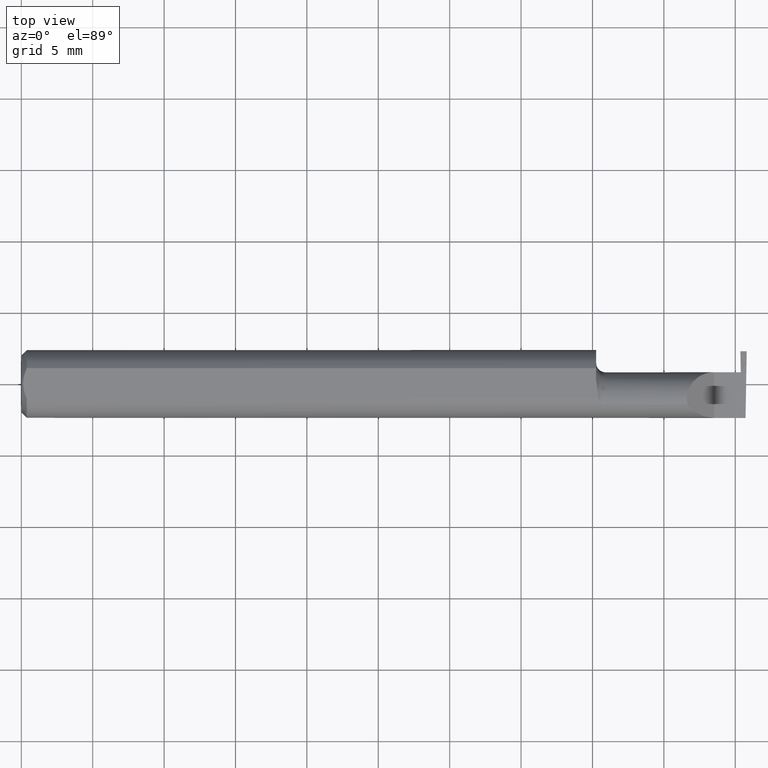
[diagram: clean part render]
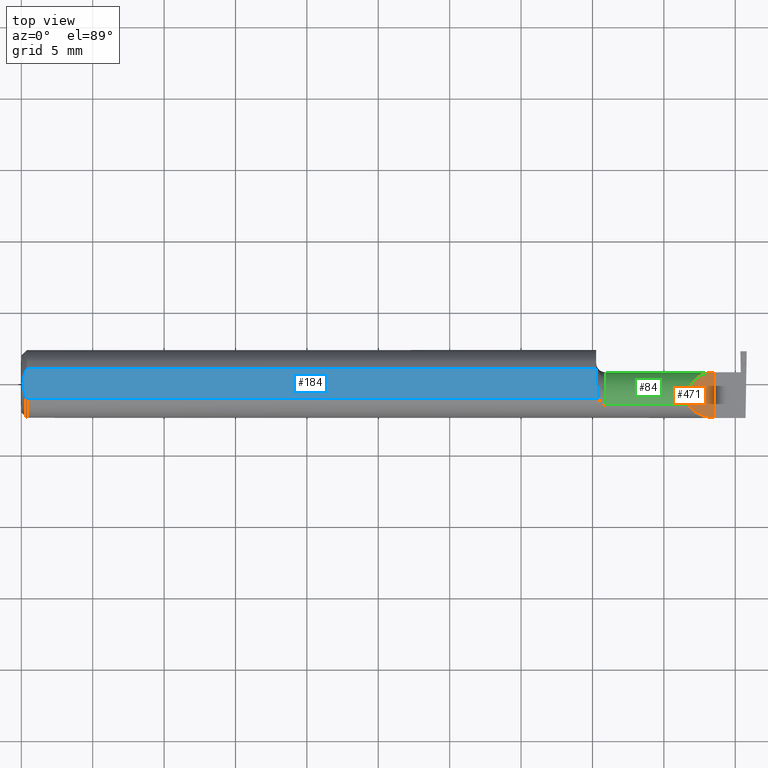
[diagram: same view with three faces highlighted in distinct colors, each labeled with its STEP entity id]
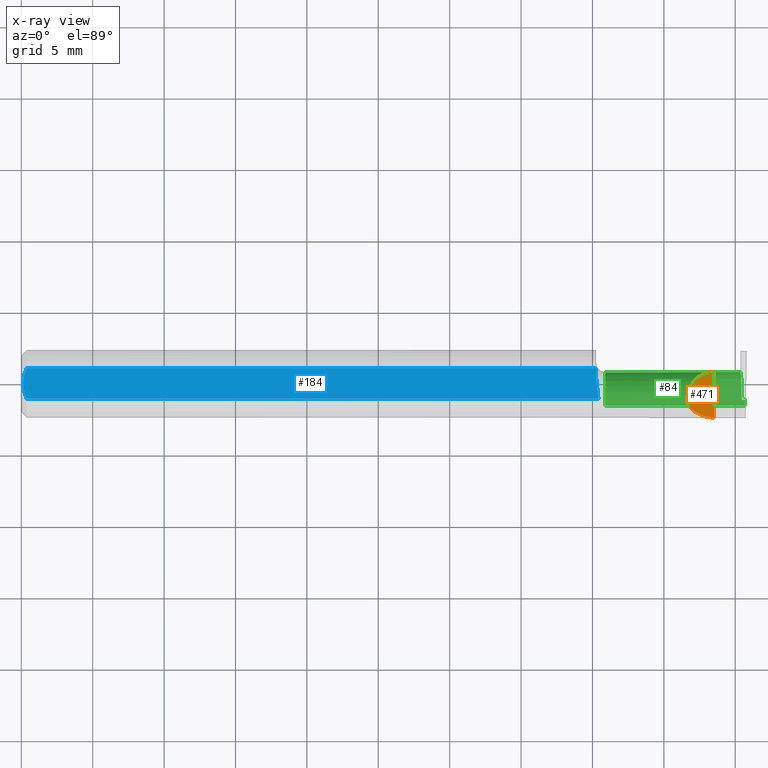
[diagram: x-ray of the same camera — body ghosted, the three highlighted faces saturated]
A machine part, top view with three faces highlighted in distinct colors.
The next image is the same camera in x-ray (body ghosted, the three faces saturated) — at least one of them is partly hidden behind the body in this view.
Their STEP definitions:

[orange] entity #471 — the highlighted planar face has unit normal (-0.7071, 0, -0.7071).
#3 = VERTEX_POINT ( 'NONE', #636 ) ;
#7 = VECTOR ( 'NONE', #419, 39.37007874015748143 ) ;
#80 = CARTESIAN_POINT ( 'NONE',  ( 1.854748759155722571, -0.08112527369187338966, 0.05525124084427806420 ) ) ;
#91 = VERTEX_POINT ( 'NONE', #495 ) ;
#137 = CARTESIAN_POINT ( 'NONE',  ( 1.836647060456910729, -0.05838157894736844405, 0.07335293954308981512 ) ) ;
#140 = CARTESIAN_POINT ( 'NONE',  ( 1.910000000000000142, 0.03224999999999999395, 1.102182119232621301E-17 ) ) ;
#163 = DIRECTION ( 'NONE',  ( -0.7071067811865459074, 0.000000000000000000, 0.7071067811865490160 ) ) ;
#180 =( BOUNDED_CURVE ( )  B_SPLINE_CURVE ( 3, ( #340, #510, #80, #405 ),
 .UNSPECIFIED., .F., .T. ) 
 B_SPLINE_CURVE_WITH_KNOTS ( ( 4, 4 ),
 ( 4.712388980384689674, 5.610949583684183395 ),
 .UNSPECIFIED. ) 
 CURVE ( )  GEOMETRIC_REPRESENTATION_ITEM ( )  RATIONAL_B_SPLINE_CURVE ( ( 1.000000000000000000, 0.9338399420684103669, 0.9338399420684103669, 1.000000000000000000 ) ) 
 REPRESENTATION_ITEM ( '' )  );
#192 = CARTESIAN_POINT ( 'NONE',  ( 1.825885935949168148, -0.007883793785045336081, 0.08411406405083239612 ) ) ;
#208 = LINE ( 'NONE', #318, #7 ) ;
#260 = EDGE_CURVE ( 'NONE', #91, #3, #208, .T. ) ;
#273 = EDGE_LOOP ( 'NONE', ( #654, #323, #292 ) ) ;
#292 = ORIENTED_EDGE ( 'NONE', *, *, #260, .T. ) ;
#318 = CARTESIAN_POINT ( 'NONE',  ( 1.910000000000000142, -0.1000000000000000056, 1.102182119232621301E-17 ) ) ;
#323 = ORIENTED_EDGE ( 'NONE', *, *, #626, .F. ) ;
#340 = CARTESIAN_POINT ( 'NONE',  ( 1.910000000000000142, -0.09375000000000001388, 1.102182119232621301E-17 ) ) ;
#405 = CARTESIAN_POINT ( 'NONE',  ( 1.836647060456910729, -0.05838157894736844405, 0.07335293954308981512 ) ) ;
#418 =( BOUNDED_CURVE ( )  B_SPLINE_CURVE ( 3, ( #137, #192, #500, #140 ),
 .UNSPECIFIED., .F., .T. ) 
 B_SPLINE_CURVE_WITH_KNOTS ( ( 4, 4 ),
 ( 6.073225026834156992, 7.853981633974482790 ),
 .UNSPECIFIED. ) 
 CURVE ( )  GEOMETRIC_REPRESENTATION_ITEM ( )  RATIONAL_B_SPLINE_CURVE ( ( 1.000000000000000000, 0.7527453416837595057, 0.7527453416837595057, 1.000000000000000000 ) ) 
 REPRESENTATION_ITEM ( '' )  );
#419 = DIRECTION ( 'NONE',  ( -0.000000000000000000, 1.000000000000000000, -0.000000000000000000 ) ) ;
#439 = PLANE ( 'NONE',  #593 ) ;
#453 = VERTEX_POINT ( 'NONE', #581 ) ;
#471 = ADVANCED_FACE ( 'NONE', ( #587 ), #439, .F. ) ;
#495 = CARTESIAN_POINT ( 'NONE',  ( 1.910000000000000142, -0.09375000000000001388, 1.102182119232621301E-17 ) ) ;
#500 = CARTESIAN_POINT ( 'NONE',  ( 1.858368342008306362, 0.03224999999999998701, 0.05163165799169417564 ) ) ;
#510 = CARTESIAN_POINT ( 'NONE',  ( 1.880932025416039766, -0.09375000000000002776, 0.02906797458396062975 ) ) ;
#540 = EDGE_CURVE ( 'NONE', #453, #3, #418, .T. ) ;
#581 = CARTESIAN_POINT ( 'NONE',  ( 1.836647060456910729, -0.05838157894736844405, 0.07335293954308981512 ) ) ;
#585 = DIRECTION ( 'NONE',  ( -0.7071067811865491270, 0.000000000000000000, -0.7071067811865460184 ) ) ;
#587 = FACE_OUTER_BOUND ( 'NONE', #273, .T. ) ;
#593 = AXIS2_PLACEMENT_3D ( 'NONE', #635, #585, #163 ) ;
#626 = EDGE_CURVE ( 'NONE', #91, #453, #180, .T. ) ;
#635 = CARTESIAN_POINT ( 'NONE',  ( 1.910000000000000142, -0.1000000000000000056, 1.102182119232621301E-17 ) ) ;
#636 = CARTESIAN_POINT ( 'NONE',  ( 1.910000000000000142, 0.03224999999999999395, 1.102182119232621301E-17 ) ) ;
#654 = ORIENTED_EDGE ( 'NONE', *, *, #540, .F. ) ;

[blue] entity #184 — the highlighted planar face has unit normal (0, -0, 1).
#4 = CARTESIAN_POINT ( 'NONE',  ( 1.584999999999999520, -0.09375000000000001388, 0.08375000000000000500 ) ) ;
#22 = DIRECTION ( 'NONE',  ( 1.000000000000000000, 0.000000000000000000, -0.000000000000000000 ) ) ;
#39 = AXIS2_PLACEMENT_3D ( 'NONE', #353, #559, #22 ) ;
#49 = CARTESIAN_POINT ( 'NONE',  ( 0.01203593375173300090, 0.03553506238379953996, 0.08375000000000000500 ) ) ;
#54 = VECTOR ( 'NONE', #582, 39.37007874015748143 ) ;
#57 = ORIENTED_EDGE ( 'NONE', *, *, #383, .T. ) ;
#62 = EDGE_CURVE ( 'NONE', #592, #355, #169, .T. ) ;
#67 = VERTEX_POINT ( 'NONE', #543 ) ;
#73 = PLANE ( 'NONE',  #39 ) ;
#81 = FACE_OUTER_BOUND ( 'NONE', #534, .T. ) ;
#97 = LINE ( 'NONE', #4, #460 ) ;
#104 = EDGE_CURVE ( 'NONE', #434, #388, #214, .T. ) ;
#133 = CARTESIAN_POINT ( 'NONE',  ( 1.590999686877564434, -0.04213074886538892977, 0.08375000000000000500 ) ) ;
#156 = CARTESIAN_POINT ( 'NONE',  ( 0.01500000000000000291, 0.04213074886588177859, 0.08375000000000000500 ) ) ;
#169 = LINE ( 'NONE', #338, #54 ) ;
#170 = ORIENTED_EDGE ( 'NONE', *, *, #104, .T. ) ;
#174 = CARTESIAN_POINT ( 'NONE',  ( 0.01499999999999999944, -0.04213074886588177859, 0.08375000000000000500 ) ) ;
#184 = ADVANCED_FACE ( 'NONE', ( #81 ), #73, .T. ) ;
#188 = CARTESIAN_POINT ( 'NONE',  ( 0.01206040376844791373, -0.03558951344700203578, 0.08375000000000000500 ) ) ;
#204 = CARTESIAN_POINT ( 'NONE',  ( 0.01500000000000000291, 0.04213074886588177859, 0.08375000000000000500 ) ) ;
#212 = LINE ( 'NONE', #315, #426 ) ;
#214 = B_SPLINE_CURVE_WITH_KNOTS ( 'NONE', 3,
 ( #498, #350, #251, #247, #188, #653 ),
 .UNSPECIFIED., .F., .F.,
 ( 4, 2, 4 ),
 ( 0.002619103696509847423, 0.003168653518337010908, 0.003718203340164174392 ),
 .UNSPECIFIED. ) ;
#247 = CARTESIAN_POINT ( 'NONE',  ( 0.009538666466586609091, -0.02877983096038006991, 0.08375000000000000500 ) ) ;
#251 = CARTESIAN_POINT ( 'NONE',  ( 0.005974781316946024302, -0.01454917911307036273, 0.08375000000000000500 ) ) ;
#253 = EDGE_CURVE ( 'NONE', #355, #434, #473, .T. ) ;
#270 = CARTESIAN_POINT ( 'NONE',  ( 1.589466124758072141, -0.02405869458993413826, 0.08374999999999999112 ) ) ;
#272 = CARTESIAN_POINT ( 'NONE',  ( 0.004999999999999999237, 1.027057032872127190E-17, 0.08375000000000000500 ) ) ;
#274 = CARTESIAN_POINT ( 'NONE',  ( 1.584999999999999964, 0.007433949980506041402, 0.08375000000000000500 ) ) ;
#315 = CARTESIAN_POINT ( 'NONE',  ( 0.000000000000000000, -0.04213074886588177859, 0.08375000000000000500 ) ) ;
#324 = CARTESIAN_POINT ( 'NONE',  ( 1.585353981402313428, 0.002977777744037073734, 0.08375000000000003275 ) ) ;
#333 = DIRECTION ( 'NONE',  ( 2.147679240302093876E-17, 1.000000000000000000, 0.000000000000000000 ) ) ;
#338 = CARTESIAN_POINT ( 'NONE',  ( 0.000000000000000000, 0.04213074886588177859, 0.08375000000000000500 ) ) ;
#350 = CARTESIAN_POINT ( 'NONE',  ( 0.004999999999999987094, -0.007334551313124574798, 0.08375000000000003275 ) ) ;
#353 = CARTESIAN_POINT ( 'NONE',  ( 2.000000000000000000, -0.09375000000000002776, 0.08375000000000000500 ) ) ;
#354 = EDGE_CURVE ( 'NONE', #388, #622, #212, .T. ) ;
#355 = VERTEX_POINT ( 'NONE', #204 ) ;
#361 = ORIENTED_EDGE ( 'NONE', *, *, #354, .T. ) ;
#367 = EDGE_CURVE ( 'NONE', #67, #592, #97, .T. ) ;
#383 = EDGE_CURVE ( 'NONE', #622, #67, #614, .T. ) ;
#388 = VERTEX_POINT ( 'NONE', #174 ) ;
#403 = ORIENTED_EDGE ( 'NONE', *, *, #253, .T. ) ;
#426 = VECTOR ( 'NONE', #569, 39.37007874015748143 ) ;
#434 = VERTEX_POINT ( 'NONE', #272 ) ;
#436 = CARTESIAN_POINT ( 'NONE',  ( 1.590999686877564434, -0.04213074886538892977, 0.08375000000000000500 ) ) ;
#446 = CARTESIAN_POINT ( 'NONE',  ( 1.584999999999999520, 0.04213074886588177859, 0.08375000000000000500 ) ) ;
#460 = VECTOR ( 'NONE', #333, 39.37007874015748143 ) ;
#469 = CARTESIAN_POINT ( 'NONE',  ( 0.004999999999999983624, 0.007314086538144515953, 0.08375000000000000500 ) ) ;
#473 = B_SPLINE_CURVE_WITH_KNOTS ( 'NONE', 3,
 ( #156, #49, #475, #672, #469, #674 ),
 .UNSPECIFIED., .F., .F.,
 ( 4, 2, 4 ),
 ( 0.001523070747180472508, 0.002071087221845159965, 0.002619103696509847423 ),
 .UNSPECIFIED. ) ;
#475 = CARTESIAN_POINT ( 'NONE',  ( 0.009492087804616128680, 0.02861790513768985161, 0.08375000000000004663 ) ) ;
#487 = CARTESIAN_POINT ( 'NONE',  ( 1.586437499065390444, -0.005930736431437498395, 0.08375000000000000500 ) ) ;
#497 = CARTESIAN_POINT ( 'NONE',  ( 1.590942578645229588, -0.03309847336431840509, 0.08375000000000000500 ) ) ;
#498 = CARTESIAN_POINT ( 'NONE',  ( 0.004999999999999999237, 1.027057032872127190E-17, 0.08375000000000000500 ) ) ;
#534 = EDGE_LOOP ( 'NONE', ( #361, #57, #556, #604, #403, #170 ) ) ;
#542 = CARTESIAN_POINT ( 'NONE',  ( 1.584999999999999520, 0.01189373248598594654, 0.08375000000000000500 ) ) ;
#543 = CARTESIAN_POINT ( 'NONE',  ( 1.584999999999999520, 0.01189373248598594654, 0.08375000000000000500 ) ) ;
#556 = ORIENTED_EDGE ( 'NONE', *, *, #367, .T. ) ;
#559 = DIRECTION ( 'NONE',  ( 0.000000000000000000, -0.000000000000000000, 1.000000000000000000 ) ) ;
#569 = DIRECTION ( 'NONE',  ( 1.000000000000000000, 0.000000000000000000, 0.000000000000000000 ) ) ;
#582 = DIRECTION ( 'NONE',  ( -1.000000000000000000, -0.000000000000000000, -0.000000000000000000 ) ) ;
#592 = VERTEX_POINT ( 'NONE', #446 ) ;
#604 = ORIENTED_EDGE ( 'NONE', *, *, #62, .T. ) ;
#614 = B_SPLINE_CURVE_WITH_KNOTS ( 'NONE', 3,
 ( #436, #497, #270, #644, #487, #324, #274, #542 ),
 .UNSPECIFIED., .F., .F.,
 ( 4, 2, 2, 4 ),
 ( 0.009618651650252088917, 0.01029828715705081998, 0.01063810491045018465, 0.01097792266384954932 ),
 .UNSPECIFIED. ) ;
#622 = VERTEX_POINT ( 'NONE', #133 ) ;
#644 = CARTESIAN_POINT ( 'NONE',  ( 1.587189498114994546, -0.01049869895607574190, 0.08375000000000004663 ) ) ;
#653 = CARTESIAN_POINT ( 'NONE',  ( 0.01499999999999999944, -0.04213074886588177859, 0.08375000000000000500 ) ) ;
#672 = CARTESIAN_POINT ( 'NONE',  ( 0.005981604563668297542, 0.01455208735151375561, 0.08375000000000000500 ) ) ;
#674 = CARTESIAN_POINT ( 'NONE',  ( 0.004999999999999999237, 1.027057032872127190E-17, 0.08375000000000000500 ) ) ;

[green] entity #84 — the highlighted cylindrical surface (edge-blend (fillet) strip) has radius 1.905 mm, axis along (-1, 0, -0).
#3 = VERTEX_POINT ( 'NONE', #636 ) ;
#5 = FACE_OUTER_BOUND ( 'NONE', #364, .T. ) ;
#8 = ORIENTED_EDGE ( 'NONE', *, *, #335, .F. ) ;
#12 = VERTEX_POINT ( 'NONE', #17 ) ;
#13 = CARTESIAN_POINT ( 'NONE',  ( 1.995546448166315878, -0.05323839212197382237, -0.07444895739054079031 ) ) ;
#14 = CARTESIAN_POINT ( 'NONE',  ( 1.983284083932824293, 0.02979487577554267366, -0.01903262984222201318 ) ) ;
#17 = CARTESIAN_POINT ( 'NONE',  ( 1.609999999999999654, -0.05838157894736842324, 0.07335293954308978737 ) ) ;
#20 = VECTOR ( 'NONE', #621, 39.37007874015748143 ) ;
#26 = LINE ( 'NONE', #198, #267 ) ;
#32 = AXIS2_PLACEMENT_3D ( 'NONE', #526, #519, #479 ) ;
#44 = EDGE_CURVE ( 'NONE', #3, #217, #224, .T. ) ;
#46 = EDGE_CURVE ( 'NONE', #157, #307, #514, .T. ) ;
#50 = DIRECTION ( 'NONE',  ( 0.000000000000000000, -1.000000000000000000, 0.000000000000000000 ) ) ;
#52 = CIRCLE ( 'NONE', #108, 0.07499999999999999722 ) ;
#55 = ORIENTED_EDGE ( 'NONE', *, *, #265, .T. ) ;
#66 = CYLINDRICAL_SURFACE ( 'NONE', #166, 0.07499999999999999722 ) ;
#72 = DIRECTION ( 'NONE',  ( -1.000000000000000000, 2.147679240302093876E-17, -0.000000000000000000 ) ) ;
#78 =( BOUNDED_CURVE ( )  B_SPLINE_CURVE ( 3, ( #14, #603, #518, #546 ),
 .UNSPECIFIED., .F., .F. ) 
 B_SPLINE_CURVE_WITH_KNOTS ( ( 4, 4 ),
 ( 4.455205321888866088, 4.711308219781929374 ),
 .UNSPECIFIED. ) 
 CURVE ( )  GEOMETRIC_REPRESENTATION_ITEM ( )  RATIONAL_B_SPLINE_CURVE ( ( 1.000000000000000000, 0.9945417399294781413, 0.9945417399294781413, 1.000000000000000000 ) ) 
 REPRESENTATION_ITEM ( '' )  );
#84 = ADVANCED_FACE ( 'NONE', ( #5 ), #66, .T. ) ;
#90 = VECTOR ( 'NONE', #123, 39.37007874015748143 ) ;
#103 = EDGE_CURVE ( 'NONE', #307, #457, #78, .T. ) ;
#105 = CARTESIAN_POINT ( 'NONE',  ( 1.982499999999999929, -0.04275000000000001021, 0.000000000000000000 ) ) ;
#107 = CARTESIAN_POINT ( 'NONE',  ( 1.995715029210241465, -0.04275000000000006573, -0.07500000000000002498 ) ) ;
#108 = AXIS2_PLACEMENT_3D ( 'NONE', #105, #579, #50 ) ;
#115 = CARTESIAN_POINT ( 'NONE',  ( 1.986213402547462925, -0.04275000000000001021, -0.07499999999999999722 ) ) ;
#121 = ORIENTED_EDGE ( 'NONE', *, *, #456, .F. ) ;
#123 = DIRECTION ( 'NONE',  ( 1.000000000000000000, -2.147679240302093876E-17, 0.000000000000000000 ) ) ;
#124 = CARTESIAN_POINT ( 'NONE',  ( 1.986214534726834069, -0.007284900077140337923, -0.07499999999999999722 ) ) ;
#128 = CARTESIAN_POINT ( 'NONE',  ( 1.995715029210241465, -0.04275000000000006573, -0.07500000000000002498 ) ) ;
#136 = VERTEX_POINT ( 'NONE', #128 ) ;
#137 = CARTESIAN_POINT ( 'NONE',  ( 1.836647060456910729, -0.05838157894736844405, 0.07335293954308981512 ) ) ;
#140 = CARTESIAN_POINT ( 'NONE',  ( 1.910000000000000142, 0.03224999999999999395, 1.102182119232621301E-17 ) ) ;
#147 = CARTESIAN_POINT ( 'NONE',  ( 1.796249999999999680, -0.05838157894736843712, 0.07335293954308980124 ) ) ;
#157 = VERTEX_POINT ( 'NONE', #301 ) ;
#166 = AXIS2_PLACEMENT_3D ( 'NONE', #285, #532, #381 ) ;
#167 = CARTESIAN_POINT ( 'NONE',  ( 1.995485408891350287, -0.05838157894736844405, -0.07335293954308980124 ) ) ;
#185 = ORIENTED_EDGE ( 'NONE', *, *, #44, .T. ) ;
#192 = CARTESIAN_POINT ( 'NONE',  ( 1.825885935949168148, -0.007883793785045336081, 0.08411406405083239612 ) ) ;
#195 = EDGE_CURVE ( 'NONE', #136, #157, #26, .T. ) ;
#198 = CARTESIAN_POINT ( 'NONE',  ( 2.000000000000000000, -0.04275000000000005879, -0.07500000000000002498 ) ) ;
#217 = VERTEX_POINT ( 'NONE', #649 ) ;
#224 = LINE ( 'NONE', #641, #90 ) ;
#235 = VECTOR ( 'NONE', #72, 39.37007874015748143 ) ;
#239 = DIRECTION ( 'NONE',  ( -1.000000000000000000, -0.000000000000000000, -0.000000000000000000 ) ) ;
#240 = EDGE_CURVE ( 'NONE', #217, #457, #52, .T. ) ;
#241 = ORIENTED_EDGE ( 'NONE', *, *, #240, .T. ) ;
#258 = CARTESIAN_POINT ( 'NONE',  ( 1.609999999999999654, -0.05838157894736840936, -0.07335293954308978737 ) ) ;
#265 = EDGE_CURVE ( 'NONE', #12, #453, #668, .T. ) ;
#267 = VECTOR ( 'NONE', #239, 39.37007874015748143 ) ;
#271 = VERTEX_POINT ( 'NONE', #258 ) ;
#285 = CARTESIAN_POINT ( 'NONE',  ( 1.584999999999999964, -0.04275000000000000328, 0.000000000000000000 ) ) ;
#301 = CARTESIAN_POINT ( 'NONE',  ( 1.986213402547462925, -0.04275000000000001021, -0.07499999999999999722 ) ) ;
#302 = CIRCLE ( 'NONE', #32, 0.07499999999999999722 ) ;
#307 = VERTEX_POINT ( 'NONE', #629 ) ;
#335 = EDGE_CURVE ( 'NONE', #12, #271, #302, .T. ) ;
#352 = CARTESIAN_POINT ( 'NONE',  ( 1.796249999999999680, -0.05838157894736843712, -0.07335293954308980124 ) ) ;
#364 = EDGE_LOOP ( 'NONE', ( #121, #662, #8, #55, #570, #185, #241, #560, #506, #399 ) ) ;
#371 =( BOUNDED_CURVE ( )  B_SPLINE_CURVE ( 3, ( #167, #13, #431, #107 ),
 .UNSPECIFIED., .F., .F. ) 
 B_SPLINE_CURVE_WITH_KNOTS ( ( 4, 4 ),
 ( 0.3777552489154321069, 0.5877155292608603476 ),
 .UNSPECIFIED. ) 
 CURVE ( )  GEOMETRIC_REPRESENTATION_ITEM ( )  RATIONAL_B_SPLINE_CURVE ( ( 1.000000000000000000, 0.9963297626697654730, 0.9963297626697654730, 1.000000000000000000 ) ) 
 REPRESENTATION_ITEM ( '' )  );
#376 = CARTESIAN_POINT ( 'NONE',  ( 1.983284083932824293, 0.02979487577554267366, -0.01903262984222201318 ) ) ;
#381 = DIRECTION ( 'NONE',  ( 0.000000000000000000, -1.000000000000000000, 0.000000000000000000 ) ) ;
#399 = ORIENTED_EDGE ( 'NONE', *, *, #195, .F. ) ;
#418 =( BOUNDED_CURVE ( )  B_SPLINE_CURVE ( 3, ( #137, #192, #500, #140 ),
 .UNSPECIFIED., .F., .T. ) 
 B_SPLINE_CURVE_WITH_KNOTS ( ( 4, 4 ),
 ( 6.073225026834156992, 7.853981633974482790 ),
 .UNSPECIFIED. ) 
 CURVE ( )  GEOMETRIC_REPRESENTATION_ITEM ( )  RATIONAL_B_SPLINE_CURVE ( ( 1.000000000000000000, 0.7527453416837595057, 0.7527453416837595057, 1.000000000000000000 ) ) 
 REPRESENTATION_ITEM ( '' )  );
#431 = CARTESIAN_POINT ( 'NONE',  ( 1.995623270227810497, -0.04800867149029529324, -0.07499999999999998335 ) ) ;
#453 = VERTEX_POINT ( 'NONE', #581 ) ;
#456 = EDGE_CURVE ( 'NONE', #643, #136, #371, .T. ) ;
#457 = VERTEX_POINT ( 'NONE', #531 ) ;
#479 = DIRECTION ( 'NONE',  ( 0.000000000000000000, -1.000000000000000000, 0.000000000000000000 ) ) ;
#500 = CARTESIAN_POINT ( 'NONE',  ( 1.858368342008306362, 0.03224999999999998701, 0.05163165799169417564 ) ) ;
#506 = ORIENTED_EDGE ( 'NONE', *, *, #46, .F. ) ;
#514 =( BOUNDED_CURVE ( )  B_SPLINE_CURVE ( 3, ( #115, #124, #539, #376 ),
 .UNSPECIFIED., .F., .F. ) 
 B_SPLINE_CURVE_WITH_KNOTS ( ( 4, 4 ),
 ( 3.140983202202991542, 4.455205321888862535 ),
 .UNSPECIFIED. ) 
 CURVE ( )  GEOMETRIC_REPRESENTATION_ITEM ( )  RATIONAL_B_SPLINE_CURVE ( ( 1.000000000000000000, 0.8611734602017913076, 0.8611734602017913076, 1.000000000000000000 ) ) 
 REPRESENTATION_ITEM ( '' )  );
#518 = CARTESIAN_POINT ( 'NONE',  ( 1.982765001967077279, 0.03224696580267935597, -0.006455479666460811096 ) ) ;
#519 = DIRECTION ( 'NONE',  ( -1.000000000000000000, 2.147679240302093876E-17, -0.000000000000000000 ) ) ;
#526 = CARTESIAN_POINT ( 'NONE',  ( 1.609999999999999654, -0.04275000000000000328, 0.000000000000000000 ) ) ;
#531 = CARTESIAN_POINT ( 'NONE',  ( 1.982499999999999929, 0.03224999167003562289, -3.534818988850987187E-05 ) ) ;
#532 = DIRECTION ( 'NONE',  ( -1.000000000000000000, 2.147679240302093876E-17, -0.000000000000000000 ) ) ;
#539 = CARTESIAN_POINT ( 'NONE',  ( 1.985080687037213298, 0.02079495418688683678, -0.05333678008583637997 ) ) ;
#540 = EDGE_CURVE ( 'NONE', #453, #3, #418, .T. ) ;
#546 = CARTESIAN_POINT ( 'NONE',  ( 1.982499999999999929, 0.03224999167003562289, -3.534818988850987187E-05 ) ) ;
#554 = CARTESIAN_POINT ( 'NONE',  ( 1.995485408891350287, -0.05838157894736844405, -0.07335293954308980124 ) ) ;
#560 = ORIENTED_EDGE ( 'NONE', *, *, #103, .F. ) ;
#570 = ORIENTED_EDGE ( 'NONE', *, *, #540, .T. ) ;
#579 = DIRECTION ( 'NONE',  ( -1.000000000000000000, 2.147679240302093876E-17, -0.000000000000000000 ) ) ;
#581 = CARTESIAN_POINT ( 'NONE',  ( 1.836647060456910729, -0.05838157894736844405, 0.07335293954308981512 ) ) ;
#603 = CARTESIAN_POINT ( 'NONE',  ( 1.983027797685394722, 0.03142410243558824146, -0.01282266061342996789 ) ) ;
#621 = DIRECTION ( 'NONE',  ( 1.000000000000000000, -2.147679240302093876E-17, 0.000000000000000000 ) ) ;
#629 = CARTESIAN_POINT ( 'NONE',  ( 1.983284083932824293, 0.02979487577554267366, -0.01903262984222201318 ) ) ;
#636 = CARTESIAN_POINT ( 'NONE',  ( 1.910000000000000142, 0.03224999999999999395, 1.102182119232621301E-17 ) ) ;
#641 = CARTESIAN_POINT ( 'NONE',  ( 1.584999999999999964, 0.03224999999999999395, 5.082284216461540301E-17 ) ) ;
#643 = VERTEX_POINT ( 'NONE', #554 ) ;
#649 = CARTESIAN_POINT ( 'NONE',  ( 1.982499999999999929, 0.03225000000000000783, 5.082285660060015392E-17 ) ) ;
#650 = EDGE_CURVE ( 'NONE', #643, #271, #652, .T. ) ;
#652 = LINE ( 'NONE', #352, #235 ) ;
#662 = ORIENTED_EDGE ( 'NONE', *, *, #650, .T. ) ;
#668 = LINE ( 'NONE', #147, #20 ) ;